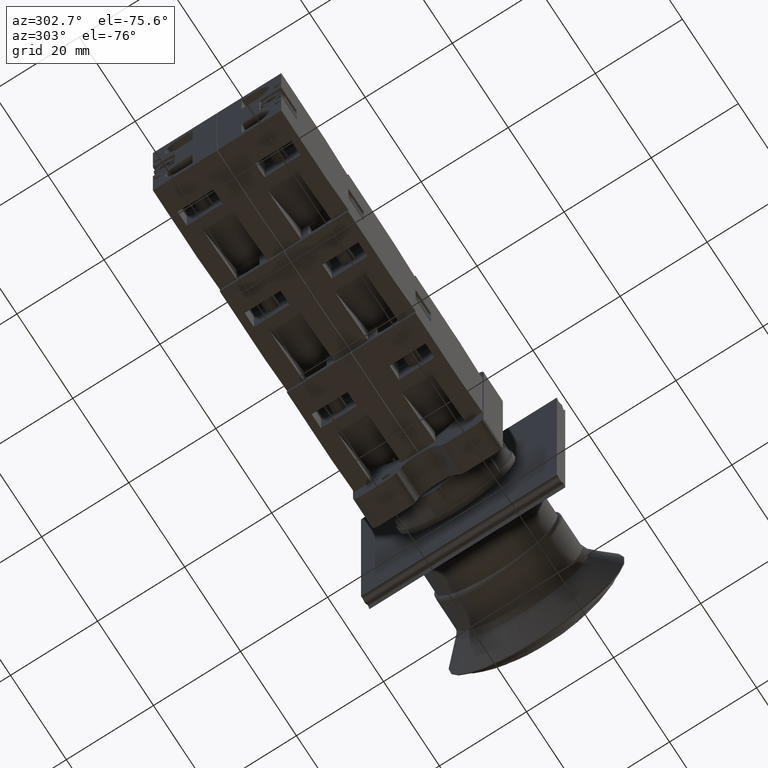
[diagram: clean part render]
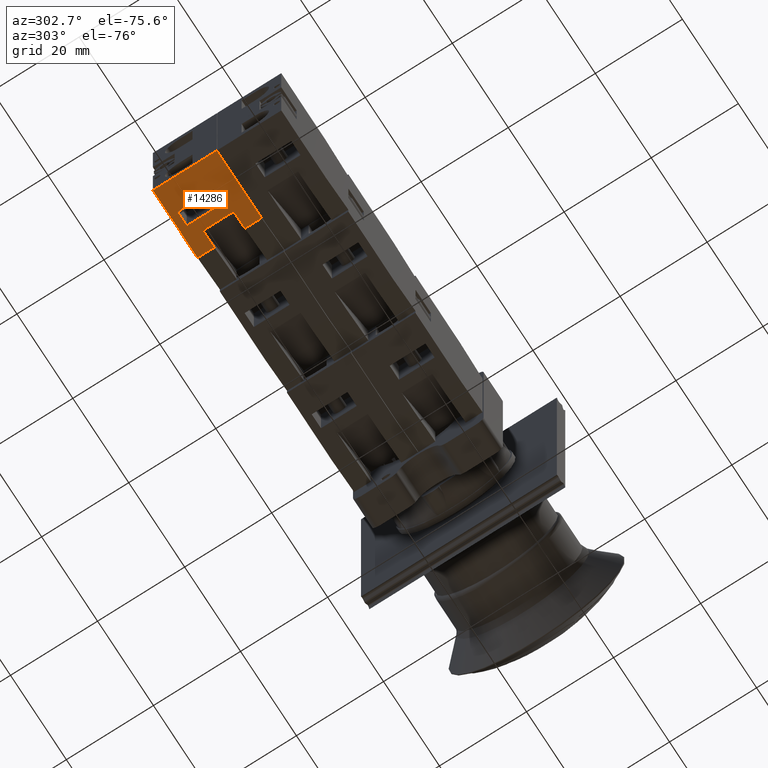
[diagram: same view with one face highlighted and labeled with its STEP entity id]
A machine part, auxiliary view. The second image highlights one B-rep face of the part: STEP entity #14286.
In plain terms, the highlighted planar face has unit normal (0, 0, -1).
Its self-contained STEP definition (entity closure, byte-faithful):
#12747=CARTESIAN_POINT('',(-15.936741828918466,7.797073323279626,10.850000000000000));
#12748=VERTEX_POINT('',#12747);
#12763=CARTESIAN_POINT('',(-15.936741828918466,11.797073323279626,10.850000000000000));
#12764=VERTEX_POINT('',#12763);
#12771=CARTESIAN_POINT('',(-15.936741828918466,7.797073323279626,10.850000000000000));
#12772=DIRECTION('',(0.0,1.0,0.0));
#12773=VECTOR('',#12772,4.0);
#12774=LINE('',#12771,#12773);
#12775=EDGE_CURVE('',#12748,#12764,#12774,.T.);
#12785=CARTESIAN_POINT('',(-15.936741828918466,11.797073323279626,3.850000000000001));
#12786=VERTEX_POINT('',#12785);
#12795=CARTESIAN_POINT('',(-15.936741828918466,11.797073323279626,10.850000000000000));
#12796=DIRECTION('',(0.0,0.0,-1.0));
#12797=VECTOR('',#12796,6.999999999999999);
#12798=LINE('',#12795,#12797);
#12799=EDGE_CURVE('',#12764,#12786,#12798,.T.);
#12816=CARTESIAN_POINT('',(-15.936741828918466,7.797073323279631,3.850000000000000));
#12817=VERTEX_POINT('',#12816);
#12826=CARTESIAN_POINT('',(-15.936741828918466,11.797073323279626,3.850000000000001));
#12827=DIRECTION('',(0.0,-1.0,0.0));
#12828=VECTOR('',#12827,3.999999999999996);
#12829=LINE('',#12826,#12828);
#12830=EDGE_CURVE('',#12786,#12817,#12829,.T.);
#12966=CARTESIAN_POINT('',(-15.936741828918466,7.797073323279626,14.699999999999999));
#12967=VERTEX_POINT('',#12966);
#12968=CARTESIAN_POINT('',(-15.936741828918466,7.797073323279626,10.850000000000000));
#12969=DIRECTION('',(0.0,0.0,1.0));
#12970=VECTOR('',#12969,3.850000000000000);
#12971=LINE('',#12968,#12970);
#12972=EDGE_CURVE('',#12748,#12967,#12971,.T.);
#13394=CARTESIAN_POINT('',(-15.936741828918466,17.597073323279638,4.800000000000001));
#13395=VERTEX_POINT('',#13394);
#13402=CARTESIAN_POINT('',(-15.936741828918466,17.597073323279638,13.0));
#13403=VERTEX_POINT('',#13402);
#13404=CARTESIAN_POINT('',(-15.936741828918466,17.597073323279638,13.0));
#13405=DIRECTION('',(0.0,0.0,-1.0));
#13406=VECTOR('',#13405,8.199999999999999);
#13407=LINE('',#13404,#13406);
#13408=EDGE_CURVE('',#13403,#13395,#13407,.T.);
#13485=CARTESIAN_POINT('',(-15.936741828918475,14.297073323279639,13.0));
#13486=VERTEX_POINT('',#13485);
#13487=CARTESIAN_POINT('',(-15.936741828918475,14.297073323279639,13.0));
#13488=DIRECTION('',(0.0,1.0,0.0));
#13489=VECTOR('',#13488,3.299999999999999);
#13490=LINE('',#13487,#13489);
#13491=EDGE_CURVE('',#13486,#13403,#13490,.T.);
#13703=CARTESIAN_POINT('',(-15.936741828918475,14.297073323279637,4.800000000000002));
#13704=VERTEX_POINT('',#13703);
#13711=CARTESIAN_POINT('',(-15.936741828918466,17.597073323279638,4.800000000000001));
#13712=DIRECTION('',(0.0,-1.0,0.0));
#13713=VECTOR('',#13712,3.300000000000001);
#13714=LINE('',#13711,#13713);
#13715=EDGE_CURVE('',#13395,#13704,#13714,.T.);
#13960=CARTESIAN_POINT('',(-15.936741828918475,14.297073323279637,4.800000000000002));
#13961=DIRECTION('',(0.0,0.0,1.0));
#13962=VECTOR('',#13961,8.199999999999999);
#13963=LINE('',#13960,#13962);
#13964=EDGE_CURVE('',#13704,#13486,#13963,.T.);
#14198=CARTESIAN_POINT('',(-15.936741828918466,23.797073323279626,14.699999999999999));
#14199=VERTEX_POINT('',#14198);
#14206=CARTESIAN_POINT('',(-15.936741828918466,23.797073323279626,0.0));
#14207=VERTEX_POINT('',#14206);
#14208=CARTESIAN_POINT('',(-15.936741828918466,23.797073323279626,0.0));
#14209=DIRECTION('',(0.0,0.0,1.0));
#14210=VECTOR('',#14209,14.699999999999999);
#14211=LINE('',#14208,#14210);
#14212=EDGE_CURVE('',#14207,#14199,#14211,.T.);
#14248=CARTESIAN_POINT('',(-15.936741828918466,23.797073323279626,0.0));
#14249=DIRECTION('',(1.0,0.0,0.0));
#14250=DIRECTION('',(0.0,0.0,-1.0));
#14251=AXIS2_PLACEMENT_3D('',#14248,#14249,#14250);
#14252=PLANE('',#14251);
#14253=ORIENTED_EDGE('',*,*,#12830,.T.);
#14254=CARTESIAN_POINT('',(-15.936741828918466,7.797073323279626,0.0));
#14255=VERTEX_POINT('',#14254);
#14256=CARTESIAN_POINT('',(-15.936741828918466,7.797073323279626,0.0));
#14257=DIRECTION('',(0.0,0.0,1.0));
#14258=VECTOR('',#14257,3.850000000000000);
#14259=LINE('',#14256,#14258);
#14260=EDGE_CURVE('',#14255,#12817,#14259,.T.);
#14261=ORIENTED_EDGE('',*,*,#14260,.F.);
#14262=CARTESIAN_POINT('',(-15.936741828918466,23.797073323279626,0.0));
#14263=DIRECTION('',(0.0,-1.0,0.0));
#14264=VECTOR('',#14263,16.0);
#14265=LINE('',#14262,#14264);
#14266=EDGE_CURVE('',#14207,#14255,#14265,.T.);
#14267=ORIENTED_EDGE('',*,*,#14266,.F.);
#14268=ORIENTED_EDGE('',*,*,#14212,.T.);
#14269=CARTESIAN_POINT('',(-15.936741828918466,23.797073323279626,14.699999999999999));
#14270=DIRECTION('',(0.0,-1.0,0.0));
#14271=VECTOR('',#14270,16.0);
#14272=LINE('',#14269,#14271);
#14273=EDGE_CURVE('',#14199,#12967,#14272,.T.);
#14274=ORIENTED_EDGE('',*,*,#14273,.T.);
#14275=ORIENTED_EDGE('',*,*,#12972,.F.);
#14276=ORIENTED_EDGE('',*,*,#12775,.T.);
#14277=ORIENTED_EDGE('',*,*,#12799,.T.);
#14278=EDGE_LOOP('',(#14253,#14261,#14267,#14268,#14274,#14275,#14276,#14277));
#14279=FACE_OUTER_BOUND('',#14278,.T.);
#14280=ORIENTED_EDGE('',*,*,#13715,.T.);
#14281=ORIENTED_EDGE('',*,*,#13964,.T.);
#14282=ORIENTED_EDGE('',*,*,#13491,.T.);
#14283=ORIENTED_EDGE('',*,*,#13408,.T.);
#14284=EDGE_LOOP('',(#14280,#14281,#14282,#14283));
#14285=FACE_BOUND('',#14284,.T.);
#14286=ADVANCED_FACE('',(#14279,#14285),#14252,.T.);